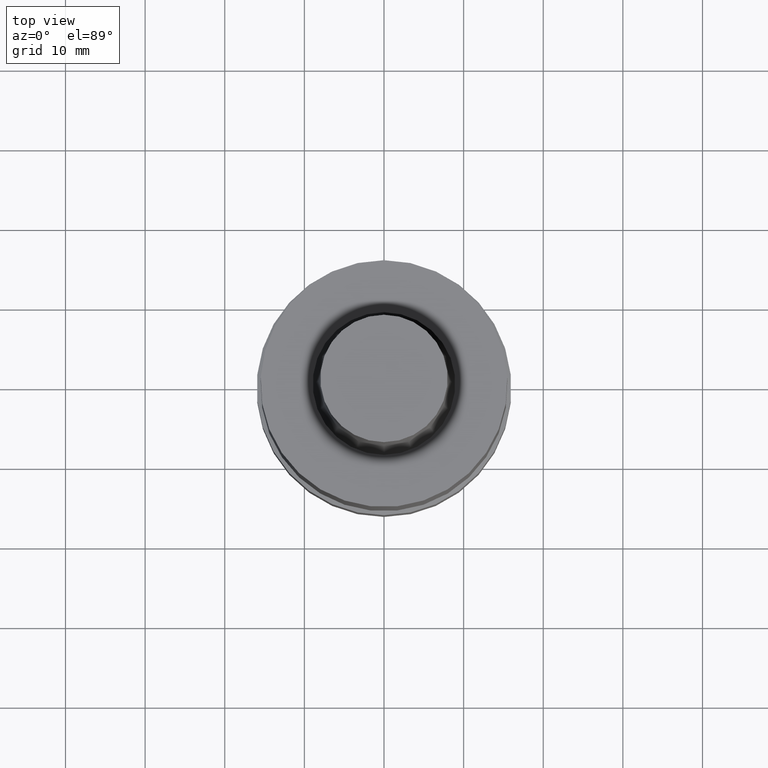
[diagram: clean part render]
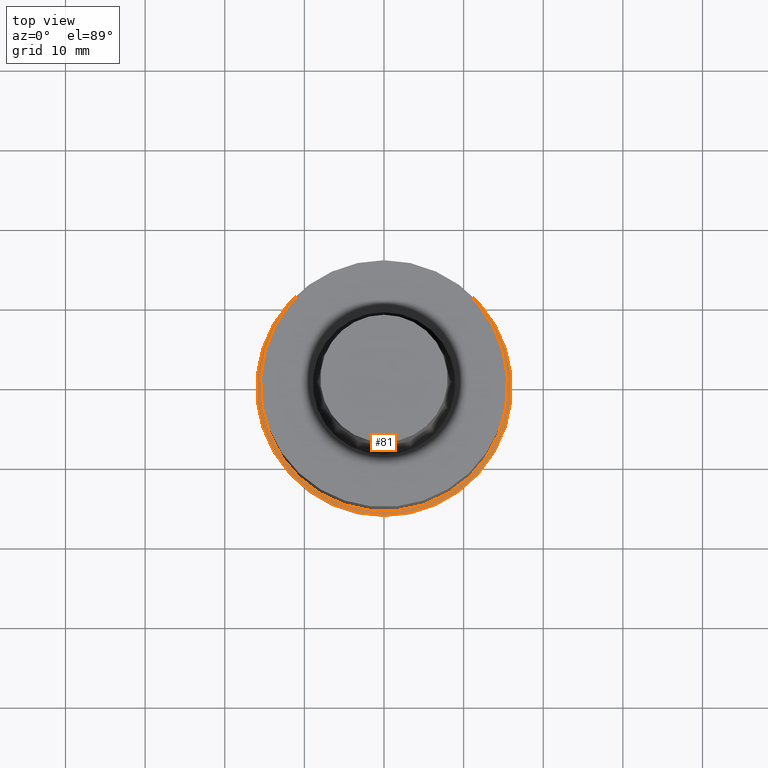
[diagram: same view with one face highlighted and labeled with its STEP entity id]
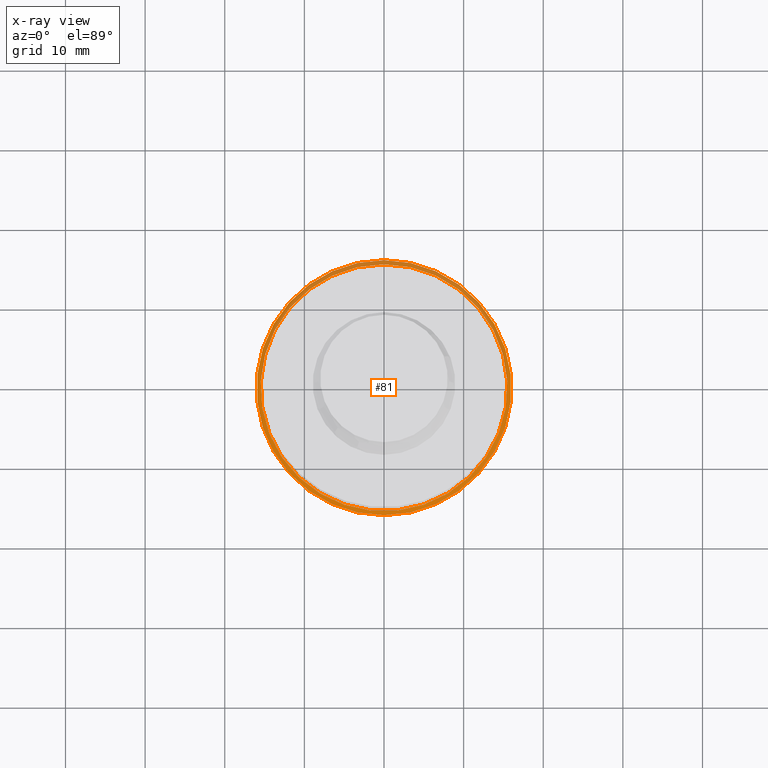
[diagram: x-ray of the same camera — body ghosted, the highlighted face saturated]
A machine part, top view. The second image highlights one B-rep face of the part: STEP entity #81.
The next image is the same camera in x-ray: the body ghosted, the highlighted face saturated — about 33% of this face is hidden behind the body in this view.
In plain terms, the highlighted conical surface has half-angle 70.7 deg.
Its self-contained STEP definition (entity closure, byte-faithful):
#81=ADVANCED_FACE('',(#102,#103),#104,.T.);
#102=FACE_BOUND('',#127,.T.);
#103=FACE_BOUND('',#128,.T.);
#104=CONICAL_SURFACE('',#129,15.75,1.23394778115995);
#127=EDGE_LOOP('',(#164));
#128=EDGE_LOOP('',(#165));
#129=AXIS2_PLACEMENT_3D('',#166,#167,#168);
#164=ORIENTED_EDGE('',*,*,#184,.F.);
#165=ORIENTED_EDGE('',*,*,#183,.T.);
#166=CARTESIAN_POINT('',(-7.68378528147054E-016,-1.53675705629411E-015,12.5485736570255));
#167=DIRECTION('',(6.12323399573677E-017,1.22464679914735E-016,-1.0));
#168=DIRECTION('',(-1.23259516440783E-032,1.0,1.22464679914735E-016));
#183=EDGE_CURVE('',#196,#196,#197,.T.);
#184=EDGE_CURVE('',#198,#198,#199,.T.);
#196=VERTEX_POINT('',#212);
#197=CIRCLE('',#213,15.5);
#198=VERTEX_POINT('',#214);
#199=CIRCLE('',#215,16.0000000000001);
#212=CARTESIAN_POINT('',(-7.73739343269532E-016,15.5,12.6361224119189));
#213=AXIS2_PLACEMENT_3D('',#233,#234,#235);
#214=CARTESIAN_POINT('',(-7.63017713024577E-016,16.0000000000001,12.4610249021321));
#215=AXIS2_PLACEMENT_3D('',#236,#237,#238);
#233=CARTESIAN_POINT('',(-7.73739343269532E-016,-1.54747868653906E-015,12.6361224119189));
#234=DIRECTION('',(6.12323399573677E-017,1.22464679914735E-016,-1.0));
#235=DIRECTION('',(-1.23259516440783E-032,1.0,1.22464679914735E-016));
#236=CARTESIAN_POINT('',(-7.63017713024577E-016,-1.52603542604915E-015,12.4610249021321));
#237=DIRECTION('',(6.12323399573677E-017,1.22464679914735E-016,-1.0));
#238=DIRECTION('',(-1.23259516440783E-032,1.0,1.22464679914735E-016));